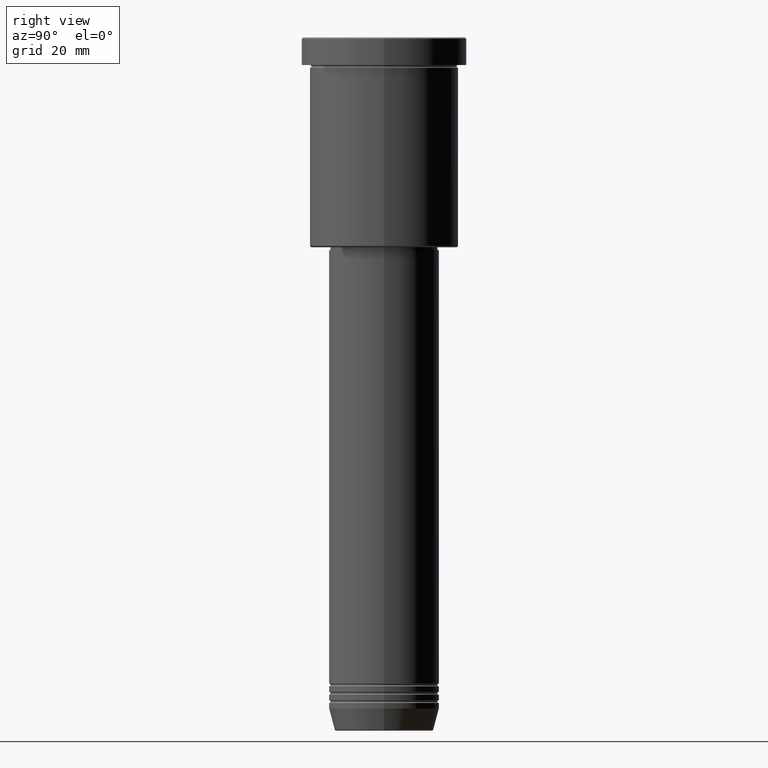
[diagram: clean part render]
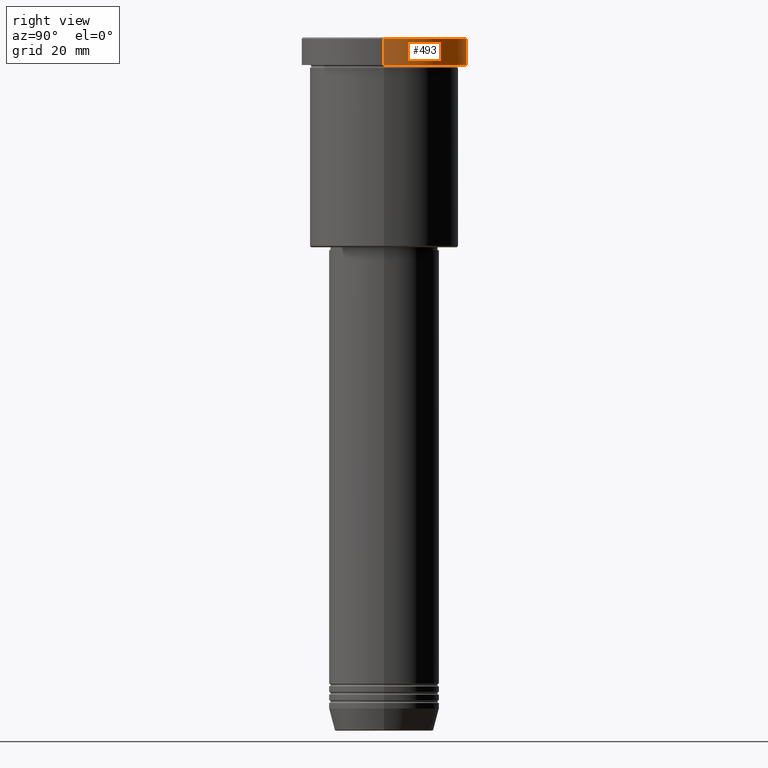
[diagram: same view with one face highlighted and labeled with its STEP entity id]
A machine part, right view. The second image highlights one B-rep face of the part: STEP entity #493.
In plain terms, the highlighted cylindrical surface (partial cylindrical patch) has radius 30 mm, axis along (-0, -0, 1).
Its self-contained STEP definition (entity closure, byte-faithful):
#3 = DIRECTION ( 'NONE',  ( 1.000000000000000000, 0.000000000000000000, 0.000000000000000000 ) ) ;
#29 = VECTOR ( 'NONE', #246, 1000.000000000000000 ) ;
#45 = EDGE_CURVE ( 'NONE', #1012, #1151, #614, .T. ) ;
#65 = DIRECTION ( 'NONE',  ( 1.000000000000000000, 0.000000000000000000, 0.000000000000000000 ) ) ;
#77 = LINE ( 'NONE', #1063, #29 ) ;
#89 = EDGE_CURVE ( 'NONE', #1151, #936, #793, .T. ) ;
#115 = DIRECTION ( 'NONE',  ( 0.000000000000000000, 0.000000000000000000, -1.000000000000000000 ) ) ;
#150 = DIRECTION ( 'NONE',  ( -0.000000000000000000, -0.000000000000000000, 1.000000000000000000 ) ) ;
#176 = EDGE_CURVE ( 'NONE', #936, #928, #800, .T. ) ;
#210 = CARTESIAN_POINT ( 'NONE',  ( 30.00000000000000000, 0.000000000000000000, -0.5000000000000073275 ) ) ;
#214 = CARTESIAN_POINT ( 'NONE',  ( -30.00000000000000000, 3.673940397442059178E-15, -0.5000000000000073275 ) ) ;
#221 = CARTESIAN_POINT ( 'NONE',  ( 30.00000000000000000, 0.000000000000000000, -9.999999999999992895 ) ) ;
#246 = DIRECTION ( 'NONE',  ( -0.000000000000000000, -0.000000000000000000, 1.000000000000000000 ) ) ;
#268 = DIRECTION ( 'NONE',  ( -0.000000000000000000, -0.000000000000000000, 1.000000000000000000 ) ) ;
#343 = FACE_OUTER_BOUND ( 'NONE', #1098, .T. ) ;
#396 = DIRECTION ( 'NONE',  ( 1.000000000000000000, 0.000000000000000000, 0.000000000000000000 ) ) ;
#433 = DIRECTION ( 'NONE',  ( -0.000000000000000000, -0.000000000000000000, 1.000000000000000000 ) ) ;
#444 = ORIENTED_EDGE ( 'NONE', *, *, #479, .F. ) ;
#479 = EDGE_CURVE ( 'NONE', #1012, #928, #77, .T. ) ;
#480 = CARTESIAN_POINT ( 'NONE',  ( 0.000000000000000000, 0.000000000000000000, -0.5000000000000073275 ) ) ;
#493 = ADVANCED_FACE ( 'NONE', ( #343 ), #512, .T. ) ;
#512 = CYLINDRICAL_SURFACE ( 'NONE', #816, 30.00000000000000000 ) ;
#538 = ORIENTED_EDGE ( 'NONE', *, *, #89, .T. ) ;
#542 = AXIS2_PLACEMENT_3D ( 'NONE', #801, #433, #65 ) ;
#599 = CARTESIAN_POINT ( 'NONE',  ( -30.00000000000000000, 3.673940397442059178E-15, 0.000000000000000000 ) ) ;
#602 = CARTESIAN_POINT ( 'NONE',  ( -30.00000000000000000, 3.673940397442059178E-15, -9.999999999999992895 ) ) ;
#603 = CARTESIAN_POINT ( 'NONE',  ( 0.000000000000000000, 0.000000000000000000, 0.000000000000000000 ) ) ;
#614 = CIRCLE ( 'NONE', #542, 30.00000000000000000 ) ;
#757 = ORIENTED_EDGE ( 'NONE', *, *, #45, .T. ) ;
#793 = LINE ( 'NONE', #599, #1142 ) ;
#800 = CIRCLE ( 'NONE', #845, 30.00000000000000000 ) ;
#801 = CARTESIAN_POINT ( 'NONE',  ( 0.000000000000000000, 0.000000000000000000, -9.999999999999992895 ) ) ;
#816 = AXIS2_PLACEMENT_3D ( 'NONE', #603, #268, #3 ) ;
#845 = AXIS2_PLACEMENT_3D ( 'NONE', #480, #115, #396 ) ;
#928 = VERTEX_POINT ( 'NONE', #210 ) ;
#936 = VERTEX_POINT ( 'NONE', #214 ) ;
#1012 = VERTEX_POINT ( 'NONE', #221 ) ;
#1063 = CARTESIAN_POINT ( 'NONE',  ( 30.00000000000000000, 0.000000000000000000, 0.000000000000000000 ) ) ;
#1078 = ORIENTED_EDGE ( 'NONE', *, *, #176, .T. ) ;
#1098 = EDGE_LOOP ( 'NONE', ( #757, #538, #1078, #444 ) ) ;
#1142 = VECTOR ( 'NONE', #150, 1000.000000000000000 ) ;
#1151 = VERTEX_POINT ( 'NONE', #602 ) ;